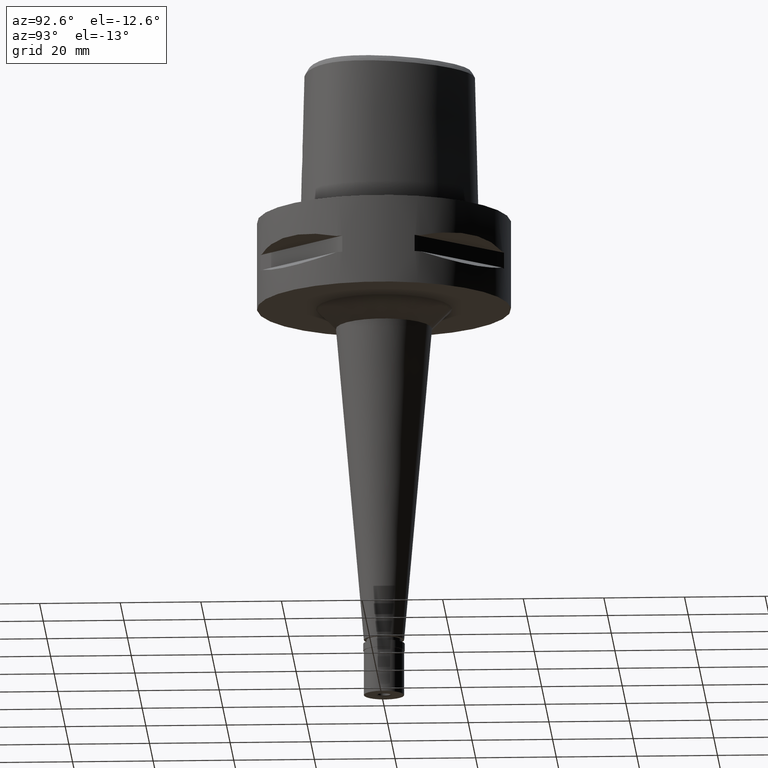
[diagram: clean part render]
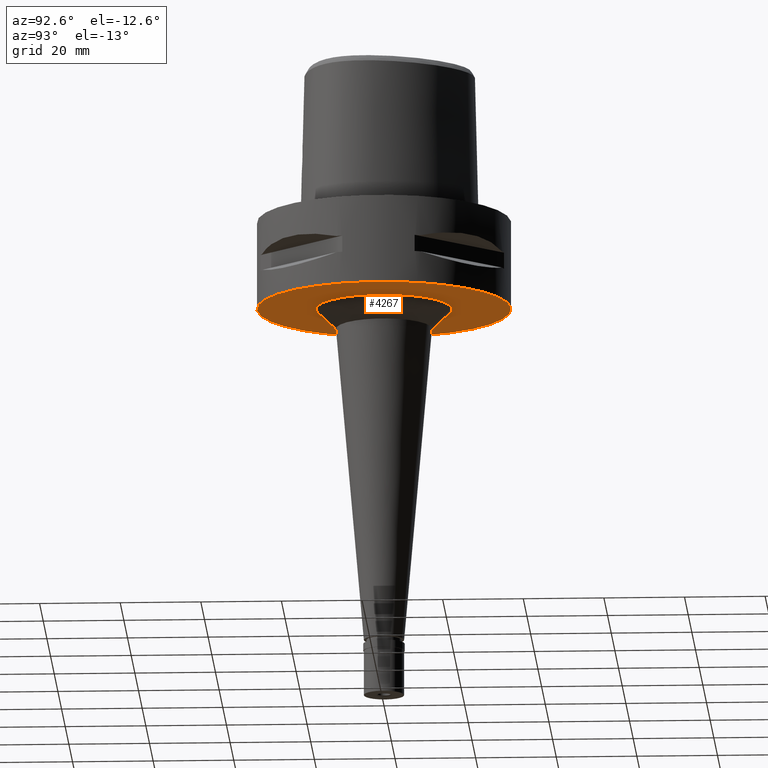
[diagram: same view with one face highlighted and labeled with its STEP entity id]
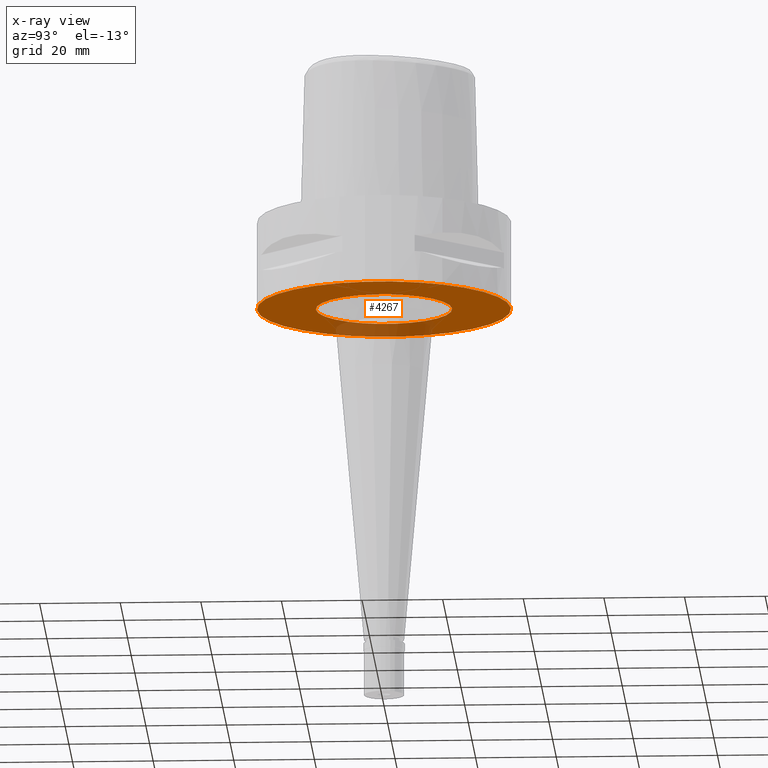
[diagram: x-ray of the same camera — body ghosted, the highlighted face saturated]
A machine part, auxiliary view. The second image highlights one B-rep face of the part: STEP entity #4267.
The next image is the same camera in x-ray: the body ghosted, the highlighted face saturated — about 17% of this face is hidden behind the body in this view.
In plain terms, the highlighted planar face has unit normal (0, 0, -1).
Its self-contained STEP definition (entity closure, byte-faithful):
#25 = FACE_BOUND ( 'NONE', #3157, .T. ) ;
#341 = AXIS2_PLACEMENT_3D ( 'NONE', #2064, #2288, #841 ) ;
#568 = CIRCLE ( 'NONE', #3362, 16.91160441854999874 ) ;
#604 = DIRECTION ( 'NONE',  ( 0.0000000000000000000, 0.0000000000000000000, -1.000000000000000000 ) ) ;
#698 = DIRECTION ( 'NONE',  ( 0.0000000000000000000, 0.0000000000000000000, 1.000000000000000000 ) ) ;
#817 = EDGE_LOOP ( 'NONE', ( #1764, #1287 ) ) ;
#841 = DIRECTION ( 'NONE',  ( 0.0000000000000000000, -1.000000000000000000, 0.0000000000000000000 ) ) ;
#948 = DIRECTION ( 'NONE',  ( 0.0000000000000000000, 1.000000000000000000, 0.0000000000000000000 ) ) ;
#1002 = CARTESIAN_POINT ( 'NONE',  ( 0.0000000000000000000, 0.0000000000000000000, -22.00000000000000000 ) ) ;
#1287 = ORIENTED_EDGE ( 'NONE', *, *, #2421, .F. ) ;
#1421 = CARTESIAN_POINT ( 'NONE',  ( 0.0000000000000000000, -16.91160441854999874, -22.00000000000000000 ) ) ;
#1423 = EDGE_CURVE ( 'NONE', #1524, #3017, #568, .T. ) ;
#1493 = CARTESIAN_POINT ( 'NONE',  ( 0.0000000000000000000, 1.295860010517999870E-14, -22.00000000000000000 ) ) ;
#1524 = VERTEX_POINT ( 'NONE', #1421 ) ;
#1527 = CIRCLE ( 'NONE', #2167, 31.50000000000000000 ) ;
#1737 = ORIENTED_EDGE ( 'NONE', *, *, #1423, .F. ) ;
#1764 = ORIENTED_EDGE ( 'NONE', *, *, #1828, .F. ) ;
#1773 = AXIS2_PLACEMENT_3D ( 'NONE', #2264, #698, #4929 ) ;
#1828 = EDGE_CURVE ( 'NONE', #2447, #2935, #1527, .T. ) ;
#2064 = CARTESIAN_POINT ( 'NONE',  ( 0.0000000000000000000, 0.0000000000000000000, -22.00000000000000000 ) ) ;
#2167 = AXIS2_PLACEMENT_3D ( 'NONE', #1493, #2648, #4177 ) ;
#2264 = CARTESIAN_POINT ( 'NONE',  ( 0.0000000000000000000, 1.295860010517999870E-14, -22.00000000000000000 ) ) ;
#2288 = DIRECTION ( 'NONE',  ( 0.0000000000000000000, 0.0000000000000000000, -1.000000000000000000 ) ) ;
#2421 = EDGE_CURVE ( 'NONE', #2935, #2447, #3210, .T. ) ;
#2447 = VERTEX_POINT ( 'NONE', #4119 ) ;
#2648 = DIRECTION ( 'NONE',  ( 0.0000000000000000000, 0.0000000000000000000, 1.000000000000000000 ) ) ;
#2735 = FACE_OUTER_BOUND ( 'NONE', #817, .T. ) ;
#2935 = VERTEX_POINT ( 'NONE', #3724 ) ;
#3017 = VERTEX_POINT ( 'NONE', #4392 ) ;
#3157 = EDGE_LOOP ( 'NONE', ( #3866, #1737 ) ) ;
#3210 = CIRCLE ( 'NONE', #1773, 31.50000000000000000 ) ;
#3271 = DIRECTION ( 'NONE',  ( 0.0000000000000000000, 0.0000000000000000000, -1.000000000000000000 ) ) ;
#3362 = AXIS2_PLACEMENT_3D ( 'NONE', #1002, #604, #3702 ) ;
#3489 = PLANE ( 'NONE',  #341 ) ;
#3564 = CARTESIAN_POINT ( 'NONE',  ( 0.0000000000000000000, 0.0000000000000000000, -22.00000000000000000 ) ) ;
#3687 = CIRCLE ( 'NONE', #4660, 16.91160441854999874 ) ;
#3702 = DIRECTION ( 'NONE',  ( 0.0000000000000000000, -1.000000000000000000, 0.0000000000000000000 ) ) ;
#3724 = CARTESIAN_POINT ( 'NONE',  ( 0.0000000000000000000, -31.50000000000000000, -22.00000000000000000 ) ) ;
#3842 = EDGE_CURVE ( 'NONE', #3017, #1524, #3687, .T. ) ;
#3866 = ORIENTED_EDGE ( 'NONE', *, *, #3842, .F. ) ;
#4119 = CARTESIAN_POINT ( 'NONE',  ( 0.0000000000000000000, 31.50000000000000000, -22.00000000000000000 ) ) ;
#4177 = DIRECTION ( 'NONE',  ( 0.0000000000000000000, 1.000000000000000000, 0.0000000000000000000 ) ) ;
#4267 = ADVANCED_FACE ( 'NONE', ( #2735, #25 ), #3489, .T. ) ;
#4392 = CARTESIAN_POINT ( 'NONE',  ( 0.0000000000000000000, 16.91160441854999874, -22.00000000000000000 ) ) ;
#4660 = AXIS2_PLACEMENT_3D ( 'NONE', #3564, #3271, #948 ) ;
#4929 = DIRECTION ( 'NONE',  ( 0.0000000000000000000, -1.000000000000000000, 0.0000000000000000000 ) ) ;